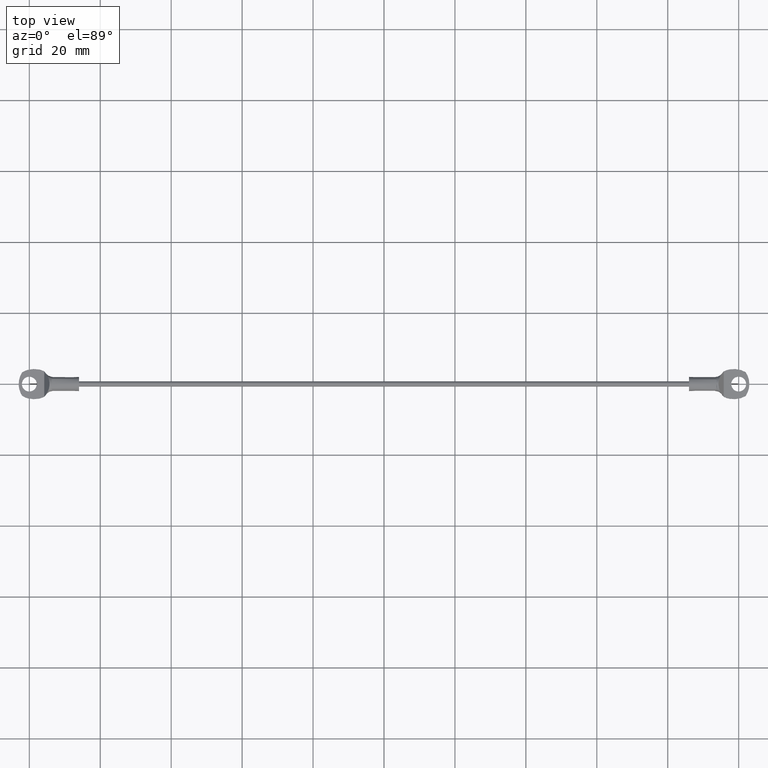
[diagram: clean part render]
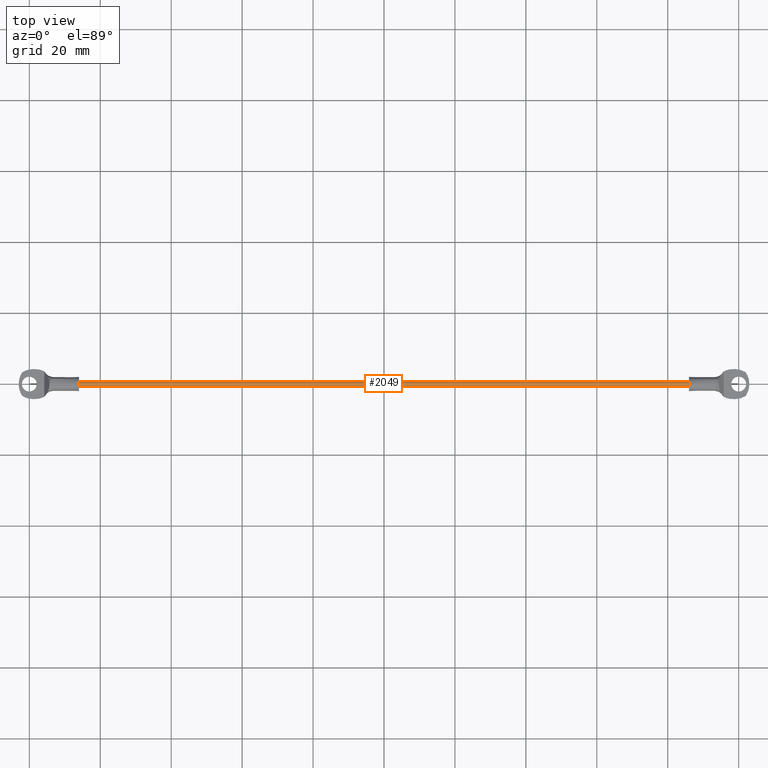
[diagram: same view with one face highlighted and labeled with its STEP entity id]
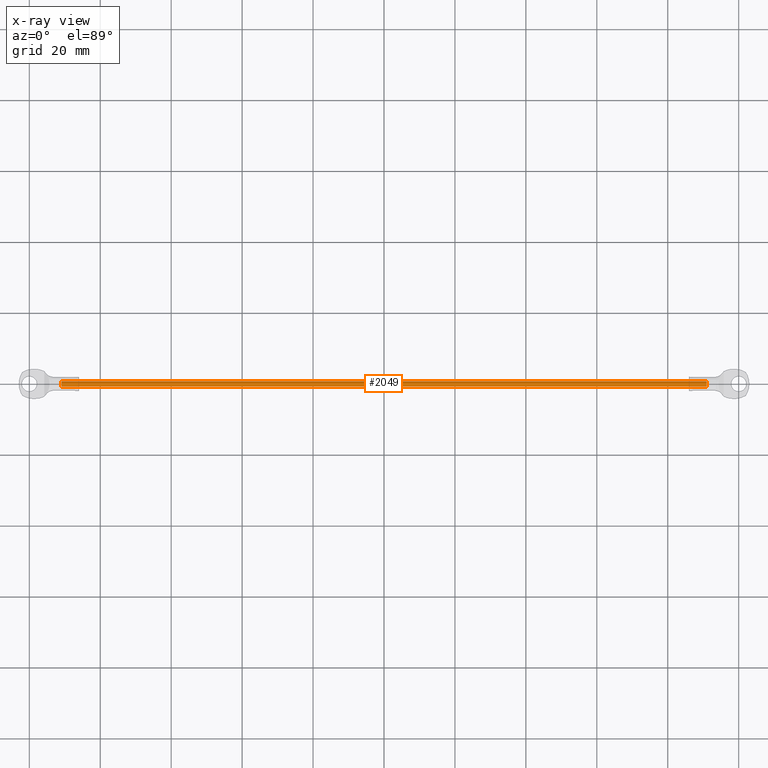
[diagram: x-ray of the same camera — body ghosted, the highlighted face saturated]
A machine part, top view. The second image highlights one B-rep face of the part: STEP entity #2049.
The next image is the same camera in x-ray: the body ghosted, the highlighted face saturated — about 0% of this face is hidden behind the body in this view.
In plain terms, the highlighted face is a freeform B-spline surface patch.
Its self-contained STEP definition (entity closure, byte-faithful):
#1886=CARTESIAN_POINT('',(-8.999999999999991,0.744757144720445,2.088525676432487));
#1887=VERTEX_POINT('',#1886);
#1905=CARTESIAN_POINT('',(-8.999999999999993,-0.748601098783422,1.954213594809891));
#1906=VERTEX_POINT('',#1905);
#1920=CARTESIAN_POINT('',(-191.0,-0.748601098783422,1.954213594809890));
#1921=VERTEX_POINT('',#1920);
#1922=CARTESIAN_POINT('',(-8.999999999999993,-0.748601098783422,1.954213594809891));
#1923=CARTESIAN_POINT('',(-191.0,-0.748601098783422,1.954213594809890));
#1924=QUASI_UNIFORM_CURVE('',1,(#1922,#1923),.UNSPECIFIED.,.F.,.U.);
#1925=EDGE_CURVE('',#1906,#1921,#1924,.T.);
#1942=CARTESIAN_POINT('',(-191.0,0.744757144720445,2.088525676432487));
#1943=VERTEX_POINT('',#1942);
#1959=CARTESIAN_POINT('',(-8.999999999999991,0.744757144720445,2.088525676432487));
#1960=CARTESIAN_POINT('',(-191.0,0.744757144720445,2.088525676432487));
#1961=QUASI_UNIFORM_CURVE('',1,(#1959,#1960),.UNSPECIFIED.,.F.,.U.);
#1962=EDGE_CURVE('',#1887,#1943,#1961,.T.);
#1967=CARTESIAN_POINT('',(-4.449999999999993,-0.748601098816386,1.954213595348858));
#1968=CARTESIAN_POINT('',(-4.449999999999993,-0.794387503467528,2.702814694165244));
#1969=CARTESIAN_POINT('',(-4.449999999999993,-0.045786404651142,2.748601098816386));
#1970=CARTESIAN_POINT('',(-4.449999999999992,0.661157618129613,2.791839647549380));
#1971=CARTESIAN_POINT('',(-4.449999999999994,0.744757144772736,2.088525675992567));
#1972=CARTESIAN_POINT('',(-195.663750000000110,-0.748601098816386,1.954213595348858));
#1973=CARTESIAN_POINT('',(-195.663750000000080,-0.794387503467528,2.702814694165244));
#1974=CARTESIAN_POINT('',(-195.663750000000110,-0.045786404651142,2.748601098816386));
#1975=CARTESIAN_POINT('',(-195.663750000000050,0.661157618129613,2.791839647549380));
#1976=CARTESIAN_POINT('',(-195.663750000000140,0.744757144772736,2.088525675992567));
#1984=(BOUNDED_SURFACE()B_SPLINE_SURFACE(2,1,((#1967,#1972),(#1968,#1973),(#1969,#1974),(#1970,#1975),(#1971,#1976)),.UNSPECIFIED.,.F.,.F.,.U.)B_SPLINE_SURFACE_WITH_KNOTS((3,2,3),(2,2),(0.0,1.570796326794897,3.078760800517997),(0.0,191.213750000000090),.UNSPECIFIED.)GEOMETRIC_REPRESENTATION_ITEM()RATIONAL_B_SPLINE_SURFACE(((1.0,1.0),(0.707106781186548,0.707106781186548),(1.0,1.0),(0.718822509939086,0.718822509939086),(0.977505800795127,0.977505800795127)))REPRESENTATION_ITEM('')SURFACE());
#1985=CARTESIAN_POINT('',(-9.0,0.0,2.749999999999986));
#1986=VERTEX_POINT('',#1985);
#1987=CARTESIAN_POINT('',(-9.0,0.0,2.749999999999986));
#1988=CARTESIAN_POINT('',(-9.0,0.666130893671021,2.749999999999985));
#1989=CARTESIAN_POINT('',(-8.999999999999991,0.744757144720445,2.088525676432487));
#1997=(BOUNDED_CURVE()B_SPLINE_CURVE(2,(#1987,#1988,#1989),.UNSPECIFIED.,.F.,.U.)B_SPLINE_CURVE_WITH_KNOTS((3,3),(0.0,0.229562473315988),.UNSPECIFIED.)CURVE()GEOMETRIC_REPRESENTATION_ITEM()RATIONAL_B_SPLINE_CURVE((1.0,0.731050833086813,0.956026753796550))REPRESENTATION_ITEM(''));
#1998=EDGE_CURVE('',#1986,#1887,#1997,.T.);
#1999=ORIENTED_EDGE('',*,*,#1998,.T.);
#2000=ORIENTED_EDGE('',*,*,#1962,.T.);
#2001=CARTESIAN_POINT('',(-191.0,0.0,2.749999999999986));
#2002=VERTEX_POINT('',#2001);
#2003=CARTESIAN_POINT('',(-191.0,0.0,2.749999999999986));
#2004=CARTESIAN_POINT('',(-191.0,0.666130893671021,2.749999999999985));
#2005=CARTESIAN_POINT('',(-190.999999999999970,0.744757144720445,2.088525676432487));
#2013=(BOUNDED_CURVE()B_SPLINE_CURVE(2,(#2003,#2004,#2005),.UNSPECIFIED.,.F.,.U.)B_SPLINE_CURVE_WITH_KNOTS((3,3),(0.0,0.229562473315988),.UNSPECIFIED.)CURVE()GEOMETRIC_REPRESENTATION_ITEM()RATIONAL_B_SPLINE_CURVE((1.0,0.731050833086813,0.956026753796550))REPRESENTATION_ITEM(''));
#2014=EDGE_CURVE('',#2002,#1943,#2013,.T.);
#2015=ORIENTED_EDGE('',*,*,#2014,.F.);
#2016=CARTESIAN_POINT('',(-191.0,-0.748601098783422,1.954213594809890));
#2017=CARTESIAN_POINT('',(-191.000000000000030,-0.749999999999986,1.977085426985580));
#2018=CARTESIAN_POINT('',(-191.0,-0.749999999999986,2.0));
#2019=CARTESIAN_POINT('',(-191.0,-0.749999999999986,2.749999999999986));
#2020=CARTESIAN_POINT('',(-191.0,0.0,2.749999999999986));
#2028=(BOUNDED_CURVE()B_SPLINE_CURVE(2,(#2016,#2017,#2018,#2019,#2020),.UNSPECIFIED.,.F.,.U.)B_SPLINE_CURVE_WITH_KNOTS((3,2,3),(0.739332961993512,0.750000000000000,1.0),.UNSPECIFIED.)CURVE()GEOMETRIC_REPRESENTATION_ITEM()RATIONAL_B_SPLINE_CURVE((0.976072041140714,0.987502787612298,1.0,0.707106781186548,1.0))REPRESENTATION_ITEM(''));
#2029=EDGE_CURVE('',#1921,#2002,#2028,.T.);
#2030=ORIENTED_EDGE('',*,*,#2029,.F.);
#2031=ORIENTED_EDGE('',*,*,#1925,.F.);
#2032=CARTESIAN_POINT('',(-8.999999999999993,-0.748601098783422,1.954213594809890));
#2033=CARTESIAN_POINT('',(-9.0,-0.749999999999986,1.977085426985580));
#2034=CARTESIAN_POINT('',(-9.0,-0.749999999999986,2.0));
#2035=CARTESIAN_POINT('',(-9.000000000000002,-0.749999999999986,2.749999999999986));
#2036=CARTESIAN_POINT('',(-9.0,0.0,2.749999999999986));
#2044=(BOUNDED_CURVE()B_SPLINE_CURVE(2,(#2032,#2033,#2034,#2035,#2036),.UNSPECIFIED.,.F.,.U.)B_SPLINE_CURVE_WITH_KNOTS((3,2,3),(0.739332961993513,0.750000000000000,1.0),.UNSPECIFIED.)CURVE()GEOMETRIC_REPRESENTATION_ITEM()RATIONAL_B_SPLINE_CURVE((0.976072041140714,0.987502787612298,1.0,0.707106781186548,1.0))REPRESENTATION_ITEM(''));
#2045=EDGE_CURVE('',#1906,#1986,#2044,.T.);
#2046=ORIENTED_EDGE('',*,*,#2045,.T.);
#2047=EDGE_LOOP('',(#1999,#2000,#2015,#2030,#2031,#2046));
#2048=FACE_OUTER_BOUND('',#2047,.T.);
#2049=ADVANCED_FACE('',(#2048),#1984,.T.);